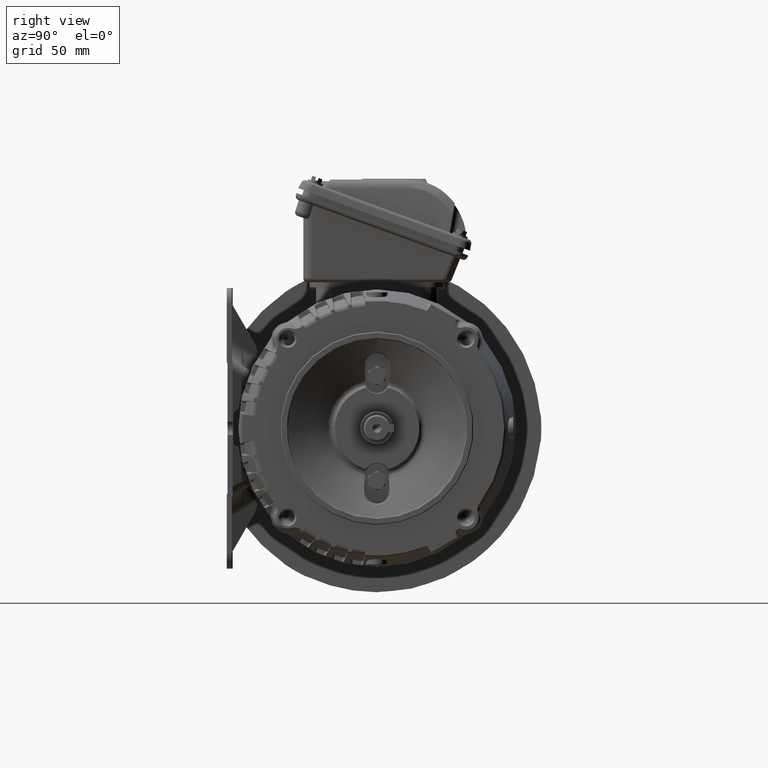
[diagram: clean part render]
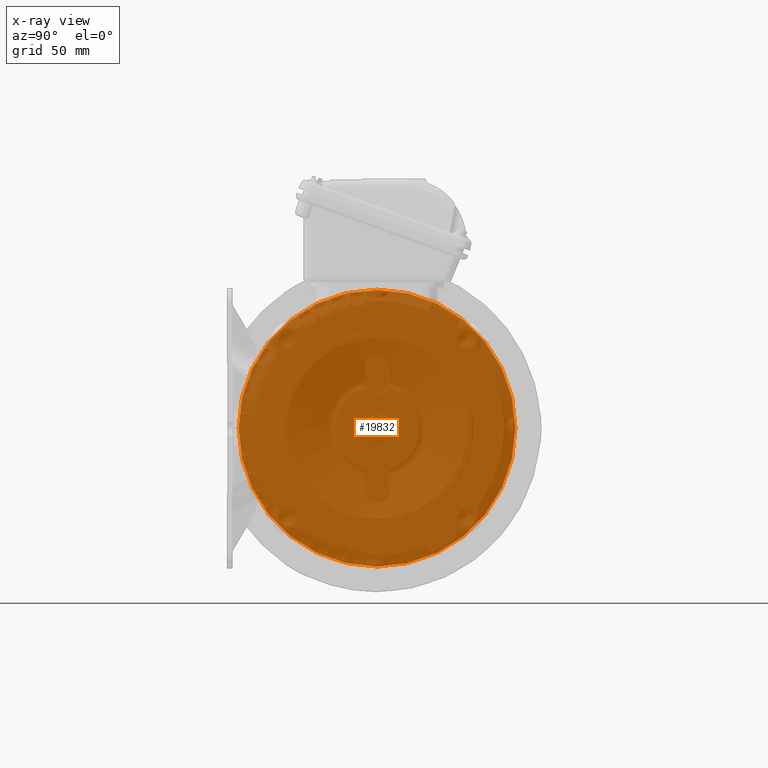
[diagram: x-ray — body ghosted, one internal face saturated and labeled with its STEP entity id]
A machine part, right view, then the same camera in x-ray: the body is ghosted and one INTERNAL B-rep face — a face not visible from any outside direction — is saturated and labeled: STEP entity #19832.
In plain terms, the highlighted planar face has unit normal (1, 0, 0).
Its self-contained STEP definition (entity closure, byte-faithful):
#898 = DIRECTION ( 'NONE',  ( 0.000000000000000000, 0.000000000000000000, 1.000000000000000000 ) ) ;
#1240 = AXIS2_PLACEMENT_3D ( 'NONE', #43205, #6057, #39142 ) ;
#4683 = DIRECTION ( 'NONE',  ( 1.000000000000000000, -0.000000000000000000, -0.000000000000000000 ) ) ;
#6057 = DIRECTION ( 'NONE',  ( 1.000000000000000000, 0.000000000000000000, 0.000000000000000000 ) ) ;
#6647 = CARTESIAN_POINT ( 'NONE',  ( -1.914826736825236075, -0.2466438790074917120, -3.223622047244065314 ) ) ;
#6776 = DIRECTION ( 'NONE',  ( 0.000000000000000000, 0.000000000000000000, 1.000000000000000000 ) ) ;
#13750 = VERTEX_POINT ( 'NONE', #52534 ) ;
#14170 = FACE_OUTER_BOUND ( 'NONE', #46713, .T. ) ;
#15621 = CIRCLE ( 'NONE', #47701, 3.223622047244094180 ) ;
#17131 = ORIENTED_EDGE ( 'NONE', *, *, #37273, .T. ) ;
#19832 = ADVANCED_FACE ( 'NONE', ( #14170 ), #30714, .T. ) ;
#20709 = CARTESIAN_POINT ( 'NONE',  ( -1.914826736825236075, -0.2466438790074921283, 2.898961162089067626E-14 ) ) ;
#30706 = CIRCLE ( 'NONE', #45437, 3.223622047244094180 ) ;
#30714 = PLANE ( 'NONE',  #1240 ) ;
#31505 = ORIENTED_EDGE ( 'NONE', *, *, #44451, .T. ) ;
#36592 = DIRECTION ( 'NONE',  ( 1.000000000000000000, -0.000000000000000000, -0.000000000000000000 ) ) ;
#37273 = EDGE_CURVE ( 'NONE', #39633, #13750, #15621, .T. ) ;
#39142 = DIRECTION ( 'NONE',  ( 0.000000000000000000, 0.000000000000000000, -1.000000000000000000 ) ) ;
#39633 = VERTEX_POINT ( 'NONE', #6647 ) ;
#43205 = CARTESIAN_POINT ( 'NONE',  ( -1.914826736825236075, -0.2466438790074921283, 2.898961162089067626E-14 ) ) ;
#44451 = EDGE_CURVE ( 'NONE', #13750, #39633, #30706, .T. ) ;
#45437 = AXIS2_PLACEMENT_3D ( 'NONE', #48785, #36592, #6776 ) ;
#46713 = EDGE_LOOP ( 'NONE', ( #31505, #17131 ) ) ;
#47701 = AXIS2_PLACEMENT_3D ( 'NONE', #20709, #4683, #898 ) ;
#48785 = CARTESIAN_POINT ( 'NONE',  ( -1.914826736825236075, -0.2466438790074921283, 2.898961162089067626E-14 ) ) ;
#52534 = CARTESIAN_POINT ( 'NONE',  ( -1.914826736825236075, -0.2466438790074921283, 3.223622047244123490 ) ) ;